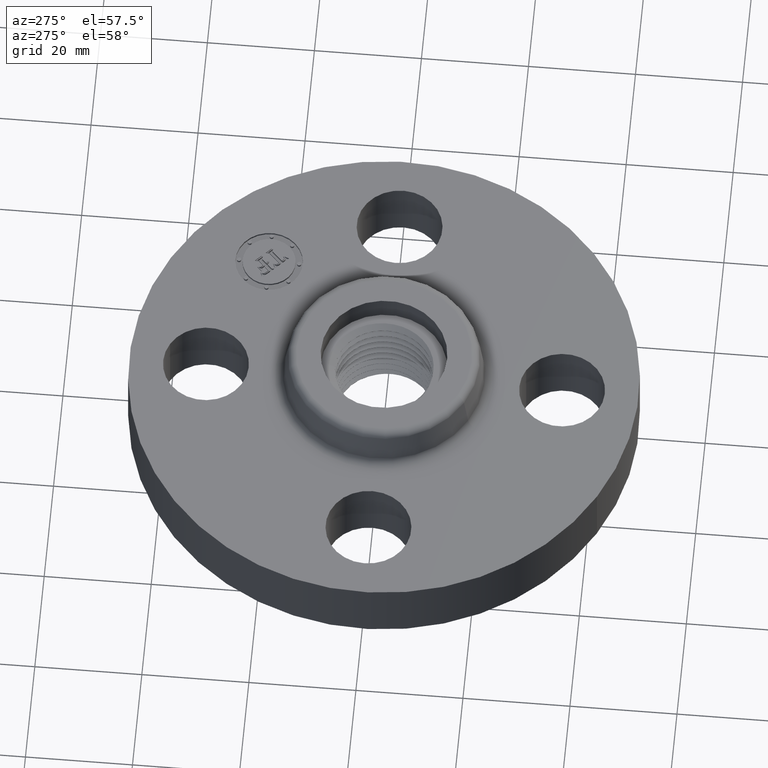
[diagram: clean part render]
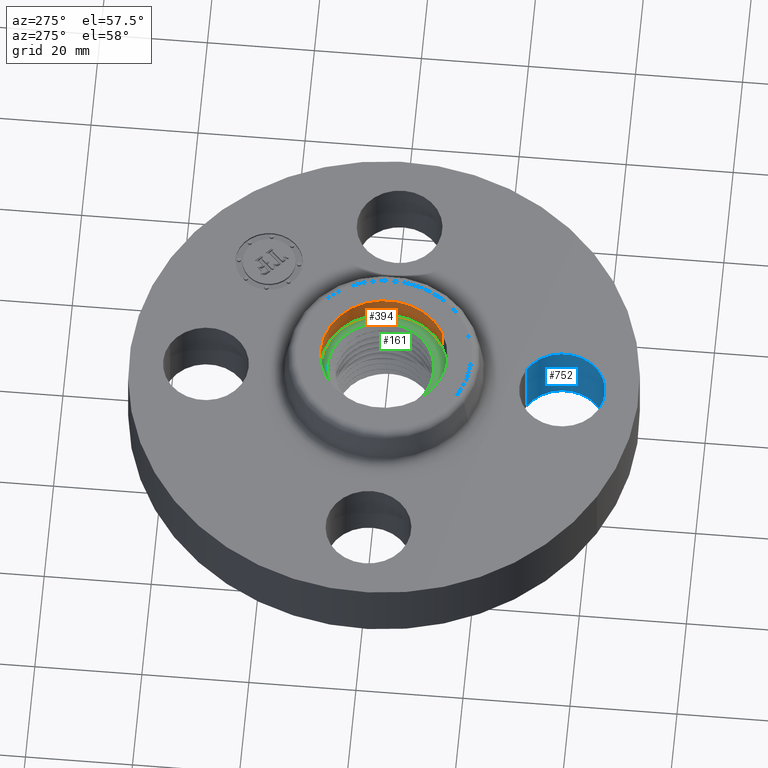
[diagram: same view with three faces highlighted in distinct colors, each labeled with its STEP entity id]
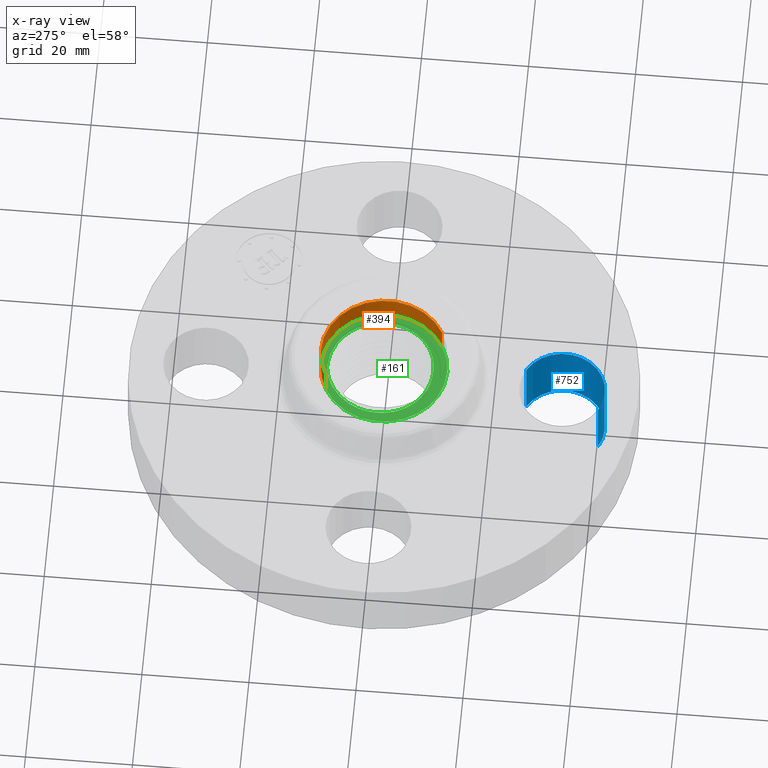
[diagram: x-ray of the same camera — body ghosted, the three highlighted faces saturated]
A machine part, auxiliary view with three faces highlighted in distinct colors.
The next image is the same camera in x-ray (body ghosted, the three faces saturated) — at least one of them is partly hidden behind the body in this view.
Their STEP definitions:

[orange] entity #394 — the highlighted cylindrical surface (partial cylindrical patch) has radius 11.811 mm, axis along (0, 0, 1).
#51=AXIS2_PLACEMENT_3D('Circle Axis2P3D',#49,#50,$) ;
#367=AXIS2_PLACEMENT_3D('Cylinder Axis2P3D',#364,#365,#366) ;
#371=AXIS2_PLACEMENT_3D('Circle Axis2P3D',#369,#370,$) ;
#44=CARTESIAN_POINT('Vertex',(-0.222932875452,0.408075891281,0.620000000002)) ;
#46=CARTESIAN_POINT('Vertex',(0.222932875452,-0.408075891281,0.620000000002)) ;
#49=CARTESIAN_POINT('Axis2P3D Location',(0.,0.,0.620000000002)) ;
#364=CARTESIAN_POINT('Axis2P3D Location',(0.,0.,0.620000000002)) ;
#369=CARTESIAN_POINT('Axis2P3D Location',(0.,0.,0.810000000003)) ;
#373=CARTESIAN_POINT('Vertex',(-0.222932875452,0.408075891281,0.810000000003)) ;
#375=CARTESIAN_POINT('Vertex',(0.222932875452,-0.408075891281,0.810000000003)) ;
#378=CARTESIAN_POINT('Line Origine',(-0.222932875452,0.408075891281,0.715000000003)) ;
#383=CARTESIAN_POINT('Line Origine',(0.222932875452,-0.408075891281,0.715000000003)) ;
#50=DIRECTION('Axis2P3D Direction',(0.,0.,0.0393700787402)) ;
#365=DIRECTION('Axis2P3D Direction',(0.,0.,0.0393700787402)) ;
#366=DIRECTION('Axis2P3D XDirection',(-0.0188750212049,0.0345504945626,0.)) ;
#370=DIRECTION('Axis2P3D Direction',(0.,0.,0.0393700787402)) ;
#379=DIRECTION('Vector Direction',(0.,0.,0.0393700787402)) ;
#384=DIRECTION('Vector Direction',(0.,0.,0.0393700787402)) ;
#380=VECTOR('Line Direction',#379,0.0393700787402) ;
#385=VECTOR('Line Direction',#384,0.0393700787402) ;
#389=ORIENTED_EDGE('',*,*,#377,.F.) ;
#390=ORIENTED_EDGE('',*,*,#382,.F.) ;
#391=ORIENTED_EDGE('',*,*,#53,.F.) ;
#392=ORIENTED_EDGE('',*,*,#387,.T.) ;
#394=ADVANCED_FACE('PartBody',(#393),#368,.F.) ;
#52=CIRCLE('generated circle',#51,0.465000000002) ;
#372=CIRCLE('generated circle',#371,0.465000000002) ;
#368=CYLINDRICAL_SURFACE('generated cylinder',#367,0.465000000002) ;
#53=EDGE_CURVE('',#47,#45,#52,.T.) ;
#377=EDGE_CURVE('',#374,#376,#372,.F.) ;
#382=EDGE_CURVE('',#45,#374,#381,.T.) ;
#387=EDGE_CURVE('',#47,#376,#386,.T.) ;
#388=EDGE_LOOP('',(#389,#390,#391,#392)) ;
#393=FACE_OUTER_BOUND('',#388,.T.) ;
#381=LINE('Line',#378,#380) ;
#386=LINE('Line',#383,#385) ;
#45=VERTEX_POINT('',#44) ;
#47=VERTEX_POINT('',#46) ;
#374=VERTEX_POINT('',#373) ;
#376=VERTEX_POINT('',#375) ;

[blue] entity #752 — the highlighted cylindrical surface (partial cylindrical patch) has radius 8.001 mm, axis along (0, -0, -1).
#311=AXIS2_PLACEMENT_3D('Circle Axis2P3D',#309,#310,$) ;
#725=AXIS2_PLACEMENT_3D('Cylinder Axis2P3D',#722,#723,#724) ;
#743=AXIS2_PLACEMENT_3D('Circle Axis2P3D',#741,#742,$) ;
#309=CARTESIAN_POINT('Axis2P3D Location',(-1.04902962957E-016,-1.31000000001,0.)) ;
#313=CARTESIAN_POINT('Vertex',(0.151019044661,-1.03356149301,0.)) ;
#315=CARTESIAN_POINT('Vertex',(-0.151019044661,-1.586438507,0.)) ;
#722=CARTESIAN_POINT('Axis2P3D Location',(-1.99526869207E-016,-1.31000000001,0.496062992128)) ;
#727=CARTESIAN_POINT('Line Origine',(0.151019044661,-1.03356149301,0.250000000001)) ;
#731=CARTESIAN_POINT('Vertex',(0.151019044661,-1.03356149301,0.500000000002)) ;
#734=CARTESIAN_POINT('Line Origine',(-0.151019044661,-1.586438507,0.250000000001)) ;
#738=CARTESIAN_POINT('Vertex',(-0.151019044661,-1.586438507,0.500000000002)) ;
#741=CARTESIAN_POINT('Axis2P3D Location',(-1.99526869207E-016,-1.31000000001,0.500000000002)) ;
#310=DIRECTION('Axis2P3D Direction',(0.,0.,-0.0393700787402)) ;
#723=DIRECTION('Axis2P3D Direction',(0.,-0.,-0.0393700787402)) ;
#724=DIRECTION('Axis2P3D XDirection',(-0.0188750212049,-0.0345504945626,0.)) ;
#728=DIRECTION('Vector Direction',(0.,0.,-0.0393700787402)) ;
#735=DIRECTION('Vector Direction',(0.,0.,-0.0393700787402)) ;
#742=DIRECTION('Axis2P3D Direction',(0.,-0.,-0.0393700787402)) ;
#729=VECTOR('Line Direction',#728,0.0393700787402) ;
#736=VECTOR('Line Direction',#735,0.0393700787402) ;
#747=ORIENTED_EDGE('',*,*,#733,.F.) ;
#748=ORIENTED_EDGE('',*,*,#317,.T.) ;
#749=ORIENTED_EDGE('',*,*,#740,.T.) ;
#750=ORIENTED_EDGE('',*,*,#745,.F.) ;
#752=ADVANCED_FACE('PartBody',(#751),#726,.F.) ;
#312=CIRCLE('generated circle',#311,0.315000000001) ;
#744=CIRCLE('generated circle',#743,0.315000000001) ;
#726=CYLINDRICAL_SURFACE('generated cylinder',#725,0.315000000001) ;
#317=EDGE_CURVE('',#314,#316,#312,.T.) ;
#733=EDGE_CURVE('',#314,#732,#730,.F.) ;
#740=EDGE_CURVE('',#316,#739,#737,.F.) ;
#745=EDGE_CURVE('',#732,#739,#744,.T.) ;
#746=EDGE_LOOP('',(#747,#748,#749,#750)) ;
#751=FACE_OUTER_BOUND('',#746,.T.) ;
#730=LINE('Line',#727,#729) ;
#737=LINE('Line',#734,#736) ;
#314=VERTEX_POINT('',#313) ;
#316=VERTEX_POINT('',#315) ;
#732=VERTEX_POINT('',#731) ;
#739=VERTEX_POINT('',#738) ;

[green] entity #161 — the highlighted planar face has unit normal (0, 0, 1).
#38=AXIS2_PLACEMENT_3D('Plane Axis2P3D',#35,#36,#37) ;
#42=AXIS2_PLACEMENT_3D('Circle Axis2P3D',#40,#41,$) ;
#51=AXIS2_PLACEMENT_3D('Circle Axis2P3D',#49,#50,$) ;
#60=AXIS2_PLACEMENT_3D('Circle Axis2P3D',#58,#59,$) ;
#35=CARTESIAN_POINT('Axis2P3D Location',(2.79741234551E-017,-5.24514814784E-017,0.620000000002)) ;
#40=CARTESIAN_POINT('Axis2P3D Location',(0.,0.,0.620000000002)) ;
#44=CARTESIAN_POINT('Vertex',(-0.222932875452,0.408075891281,0.620000000002)) ;
#46=CARTESIAN_POINT('Vertex',(0.222932875452,-0.408075891281,0.620000000002)) ;
#49=CARTESIAN_POINT('Axis2P3D Location',(0.,0.,0.620000000002)) ;
#58=CARTESIAN_POINT('Axis2P3D Location',(6.2941777774E-017,2.62257407392E-017,0.620000000002)) ;
#62=CARTESIAN_POINT('Vertex',(-0.0533356767466,-0.357985314406,0.620000290522)) ;
#64=CARTESIAN_POINT('Vertex',(-0.000693804398066,-0.361936021634,0.619999644062)) ;
#68=CARTESIAN_POINT('Control Point',(-0.19641469189,0.359539285282,0.620000000002)) ;
#69=CARTESIAN_POINT('Control Point',(-0.231906291542,0.337939821944,0.620000000002)) ;
#70=CARTESIAN_POINT('Control Point',(-0.264555040731,0.311898365684,0.620000000002)) ;
#71=CARTESIAN_POINT('Control Point',(-0.293599579212,0.281899537157,0.620000000002)) ;
#72=CARTESIAN_POINT('Control Point',(-0.34323121778,0.215346901554,0.620000000002)) ;
#73=CARTESIAN_POINT('Control Point',(-0.374241914958,0.138886030136,0.620000000002)) ;
#74=CARTESIAN_POINT('Control Point',(-0.384671582169,0.0989607477538,0.620000000002)) ;
#75=CARTESIAN_POINT('Control Point',(-0.392876981854,0.0338553070748,0.620000000002)) ;
#76=CARTESIAN_POINT('Control Point',(-0.387578457042,-0.0308830449983,0.620000000002)) ;
#77=CARTESIAN_POINT('Control Point',(-0.383698105804,-0.0549084709916,0.620000000002)) ;
#78=CARTESIAN_POINT('Control Point',(-0.368396109631,-0.117786196139,0.620000000002)) ;
#79=CARTESIAN_POINT('Control Point',(-0.340369258199,-0.176119575531,0.620000000002)) ;
#80=CARTESIAN_POINT('Control Point',(-0.318194385045,-0.209926023692,0.620000000002)) ;
#81=CARTESIAN_POINT('Control Point',(-0.265615445037,-0.270687788538,0.620000000002)) ;
#82=CARTESIAN_POINT('Control Point',(-0.19947855746,-0.315296355372,0.620000000002)) ;
#83=CARTESIAN_POINT('Control Point',(-0.163711888982,-0.332974897127,0.620000000002)) ;
#84=CARTESIAN_POINT('Control Point',(-0.119470410042,-0.347849611939,0.620000000002)) ;
#85=CARTESIAN_POINT('Control Point',(-0.0740355343342,-0.35550896131,0.620000000002)) ;
#86=CARTESIAN_POINT('Control Point',(-0.0671463144445,-0.356501024101,0.620000000002)) ;
#87=CARTESIAN_POINT('Control Point',(-0.0602465809472,-0.357326136333,0.620000000002)) ;
#88=CARTESIAN_POINT('Control Point',(-0.0533356001781,-0.357984887074,0.620000000002)) ;
#89=CARTESIAN_POINT('Vertex',(-0.19641469189,0.359539285282,0.620000000002)) ;
#93=CARTESIAN_POINT('Control Point',(-0.0327497672442,0.416478177928,0.620000000002)) ;
#94=CARTESIAN_POINT('Control Point',(-0.0675561381166,0.412129695959,0.620000000002)) ;
#95=CARTESIAN_POINT('Control Point',(-0.101827217853,0.40413367824,0.620000000002)) ;
#96=CARTESIAN_POINT('Control Point',(-0.13505667008,0.392562900158,0.620000000002)) ;
#97=CARTESIAN_POINT('Control Point',(-0.166730024858,0.377604767879,0.620000000002)) ;
#98=CARTESIAN_POINT('Control Point',(-0.19641469189,0.359539285282,0.620000000002)) ;
#99=CARTESIAN_POINT('Vertex',(-0.0327497672442,0.416478177928,0.620000000002)) ;
#103=CARTESIAN_POINT('Control Point',(-0.0327497672442,0.416478177928,0.620000000002)) ;
#104=CARTESIAN_POINT('Control Point',(-0.0261981439789,0.416720888816,0.620000000002)) ;
#105=CARTESIAN_POINT('Control Point',(-0.019644218026,0.416834862238,0.620000000002)) ;
#106=CARTESIAN_POINT('Control Point',(-0.0130868604845,0.41681997783,0.620000000002)) ;
#107=CARTESIAN_POINT('Control Point',(-0.00653844385454,0.416676319234,0.620000000002)) ;
#108=CARTESIAN_POINT('Control Point',(2.17680125899E-006,0.416404120074,0.620000000002)) ;
#109=CARTESIAN_POINT('Vertex',(2.17680125902E-006,0.416404120074,0.620000000002)) ;
#113=CARTESIAN_POINT('Control Point',(2.17680125957E-006,0.416404120074,0.620000000002)) ;
#114=CARTESIAN_POINT('Control Point',(0.0418527042491,0.414662438594,0.620000000002)) ;
#115=CARTESIAN_POINT('Control Point',(0.083384038925,0.407658117743,0.620000000002)) ;
#116=CARTESIAN_POINT('Control Point',(0.123703739204,0.395441127107,0.620000000002)) ;
#117=CARTESIAN_POINT('Control Point',(0.20015753558,0.361157702563,0.620000000002)) ;
#118=CARTESIAN_POINT('Control Point',(0.265255330379,0.309092076238,0.620000000002)) ;
#119=CARTESIAN_POINT('Control Point',(0.294213724674,0.279091775189,0.620000000002)) ;
#120=CARTESIAN_POINT('Control Point',(0.333770601253,0.225842433188,0.620000000002)) ;
#121=CARTESIAN_POINT('Control Point',(0.361412609592,0.166209856947,0.620000000002)) ;
#122=CARTESIAN_POINT('Control Point',(0.370006716416,0.143132357512,0.620000000002)) ;
#123=CARTESIAN_POINT('Control Point',(0.388027713694,0.0801785084035,0.620000000002)) ;
#124=CARTESIAN_POINT('Control Point',(0.392754098043,0.014805898033,0.620000000002)) ;
#125=CARTESIAN_POINT('Control Point',(0.390348891808,-0.0260834978245,0.620000000002)) ;
#126=CARTESIAN_POINT('Control Point',(0.374981905279,-0.106050256317,0.620000000002)) ;
#127=CARTESIAN_POINT('Control Point',(0.339743556725,-0.178926983099,0.620000000002)) ;
#128=CARTESIAN_POINT('Control Point',(0.317460377056,-0.212734606928,0.620000000002)) ;
#129=CARTESIAN_POINT('Control Point',(0.277640286923,-0.258549755844,0.620000000002)) ;
#130=CARTESIAN_POINT('Control Point',(0.230067488487,-0.295195722833,0.620000000002)) ;
#131=CARTESIAN_POINT('Control Point',(0.213251004174,-0.306423219507,0.620000000002)) ;
#132=CARTESIAN_POINT('Control Point',(0.195752972104,-0.316462980516,0.620000000002)) ;
#133=CARTESIAN_POINT('Control Point',(0.177687266923,-0.325262754407,0.620000000002)) ;
#134=CARTESIAN_POINT('Vertex',(0.177687266923,-0.325262754407,0.620000000002)) ;
#138=CARTESIAN_POINT('Control Point',(0.177687266923,-0.325262754407,0.620000000002)) ;
#139=CARTESIAN_POINT('Control Point',(0.144520831835,-0.341418067945,0.620000000002)) ;
#140=CARTESIAN_POINT('Control Point',(0.109441073256,-0.353394026492,0.620000000002)) ;
#141=CARTESIAN_POINT('Control Point',(0.0731292726196,-0.360874496946,0.620000000002)) ;
#142=CARTESIAN_POINT('Control Point',(0.0363949239215,-0.363712044745,0.620000000002)) ;
#143=CARTESIAN_POINT('Control Point',(-4.82937678172E-006,-0.361969138514,0.620000000002)) ;
#144=CARTESIAN_POINT('Vertex',(-4.83091162415E-006,-0.361937362568,0.620021275599)) ;
#147=CARTESIAN_POINT('Line Origine',(-0.000349319289452,-0.361936159983,0.620000000002)) ;
#36=DIRECTION('Axis2P3D Direction',(0.,0.,0.0393700787402)) ;
#37=DIRECTION('Axis2P3D XDirection',(0.0393700787402,0.,0.)) ;
#41=DIRECTION('Axis2P3D Direction',(0.,0.,0.0393700787402)) ;
#50=DIRECTION('Axis2P3D Direction',(0.,0.,0.0393700787402)) ;
#59=DIRECTION('Axis2P3D Direction',(0.,0.,0.0393700787402)) ;
#148=DIRECTION('Vector Direction',(-0.0393700041723,7.66255925895E-005,0.)) ;
#149=VECTOR('Line Direction',#148,0.0393700787402) ;
#55=ORIENTED_EDGE('',*,*,#48,.T.) ;
#56=ORIENTED_EDGE('',*,*,#53,.T.) ;
#153=ORIENTED_EDGE('',*,*,#66,.F.) ;
#154=ORIENTED_EDGE('',*,*,#91,.F.) ;
#155=ORIENTED_EDGE('',*,*,#101,.F.) ;
#156=ORIENTED_EDGE('',*,*,#111,.T.) ;
#157=ORIENTED_EDGE('',*,*,#136,.T.) ;
#158=ORIENTED_EDGE('',*,*,#146,.T.) ;
#159=ORIENTED_EDGE('',*,*,#151,.F.) ;
#160=FACE_BOUND('',#152,.T.) ;
#161=ADVANCED_FACE('PartBody',(#57,#160),#39,.T.) ;
#67=B_SPLINE_CURVE_WITH_KNOTS('',5,(#68,#69,#70,#71,#72,#73,#74,#75,#76,#77,#78,#79,#80,#81,#82,#83,#84,#85,#86,#87,#88),.UNSPECIFIED.,.F.,.U.,(6,3,3,3,3,3,6),(0.,7.29223786128,14.5877472368,18.9641534408,26.2595757121,33.5630668086,34.8621500723),.UNSPECIFIED.) ;
#92=B_SPLINE_CURVE_WITH_KNOTS('',5,(#93,#94,#95,#96,#97,#98),.UNSPECIFIED.,.F.,.U.,(6,6),(0.,6.0991235902),.UNSPECIFIED.) ;
#102=B_SPLINE_CURVE_WITH_KNOTS('',5,(#103,#104,#105,#106,#107,#108),.UNSPECIFIED.,.F.,.U.,(6,6),(0.,1.13990777103),.UNSPECIFIED.) ;
#112=B_SPLINE_CURVE_WITH_KNOTS('',5,(#113,#114,#115,#116,#117,#118,#119,#120,#121,#122,#123,#124,#125,#126,#127,#128,#129,#130,#131,#132,#133),.UNSPECIFIED.,.F.,.U.,(6,3,3,3,3,3,6),(0.,7.29376369063,14.5864814611,18.9589270751,26.2431444753,33.5290055657,37.2315771885),.UNSPECIFIED.) ;
#137=B_SPLINE_CURVE_WITH_KNOTS('',5,(#138,#139,#140,#141,#142,#143),.UNSPECIFIED.,.F.,.U.,(6,6),(0.,6.79747069503),.UNSPECIFIED.) ;
#43=CIRCLE('generated circle',#42,0.465000000002) ;
#52=CIRCLE('generated circle',#51,0.465000000002) ;
#61=CIRCLE('generated circle',#60,0.361936697742) ;
#48=EDGE_CURVE('',#45,#47,#43,.T.) ;
#53=EDGE_CURVE('',#47,#45,#52,.T.) ;
#66=EDGE_CURVE('',#63,#65,#61,.T.) ;
#91=EDGE_CURVE('',#90,#63,#67,.T.) ;
#101=EDGE_CURVE('',#100,#90,#92,.T.) ;
#111=EDGE_CURVE('',#100,#110,#102,.T.) ;
#136=EDGE_CURVE('',#110,#135,#112,.T.) ;
#146=EDGE_CURVE('',#135,#145,#137,.T.) ;
#151=EDGE_CURVE('',#65,#145,#150,.F.) ;
#54=EDGE_LOOP('',(#55,#56)) ;
#152=EDGE_LOOP('',(#153,#154,#155,#156,#157,#158,#159)) ;
#57=FACE_OUTER_BOUND('',#54,.T.) ;
#150=LINE('Line',#147,#149) ;
#39=PLANE('',#38) ;
#45=VERTEX_POINT('',#44) ;
#47=VERTEX_POINT('',#46) ;
#63=VERTEX_POINT('',#62) ;
#65=VERTEX_POINT('',#64) ;
#90=VERTEX_POINT('',#89) ;
#100=VERTEX_POINT('',#99) ;
#110=VERTEX_POINT('',#109) ;
#135=VERTEX_POINT('',#134) ;
#145=VERTEX_POINT('',#144) ;